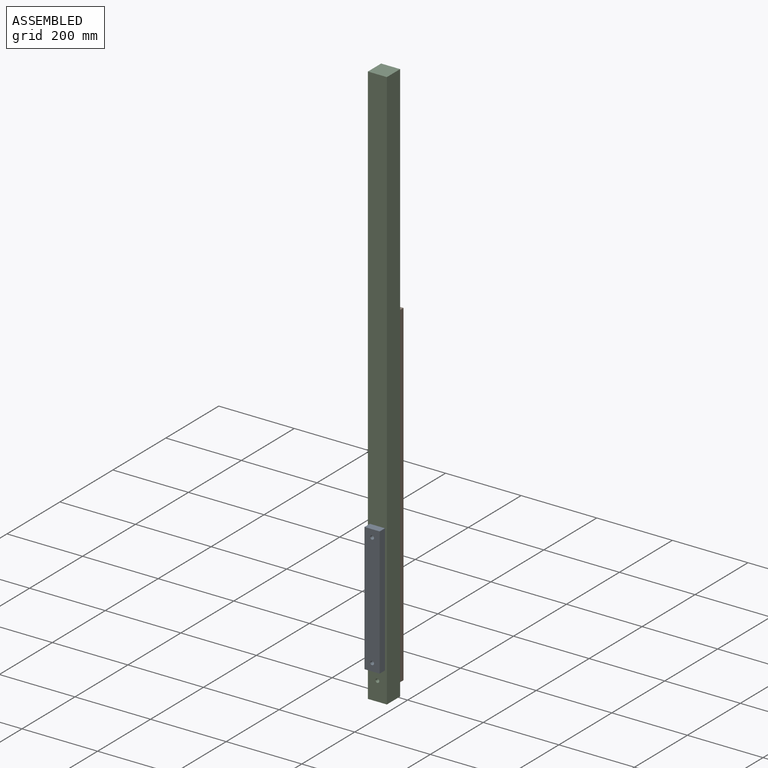
[diagram: assembled view]
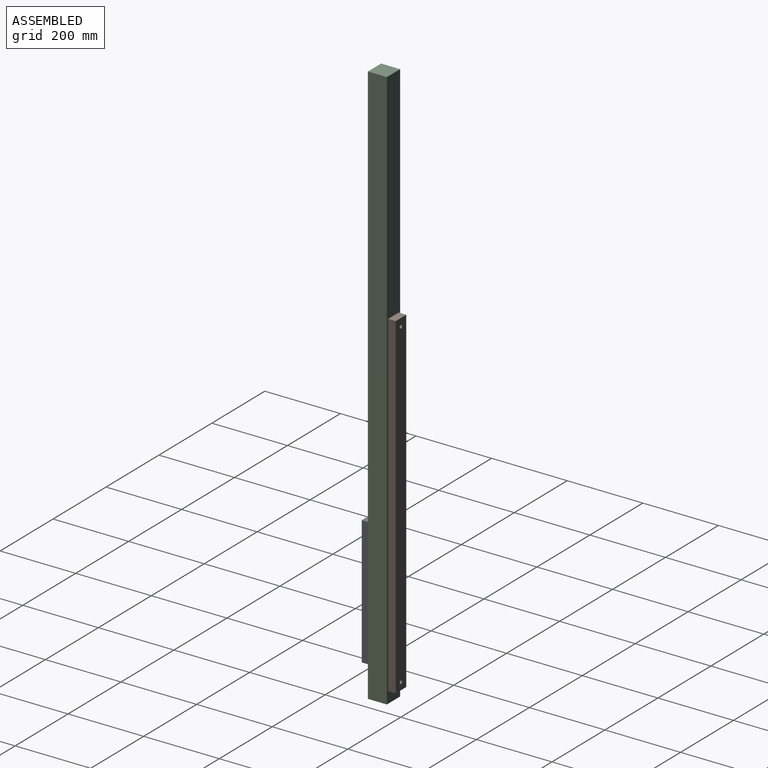
[diagram: assembled view, second angle]
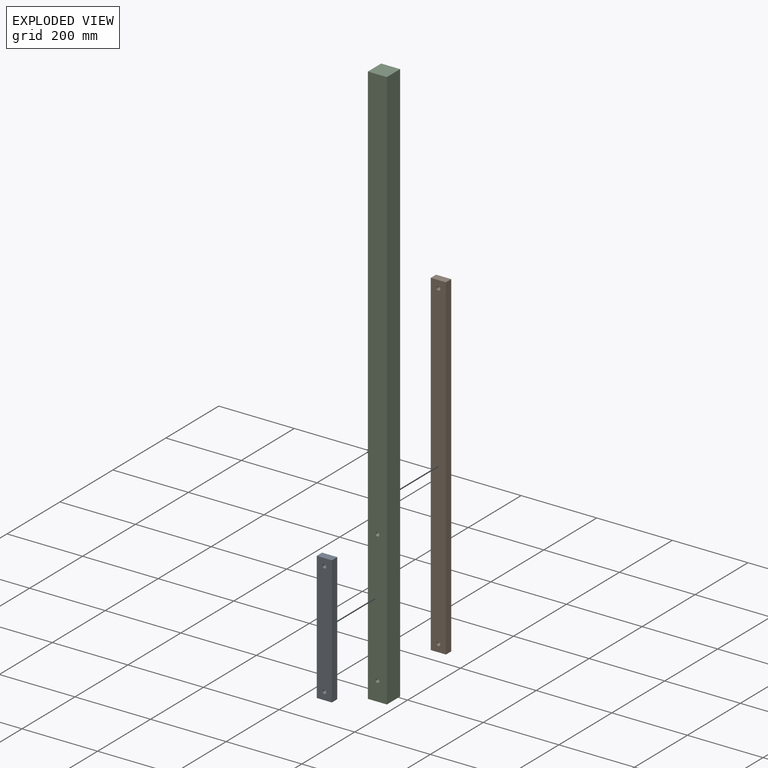
[diagram: exploded view]
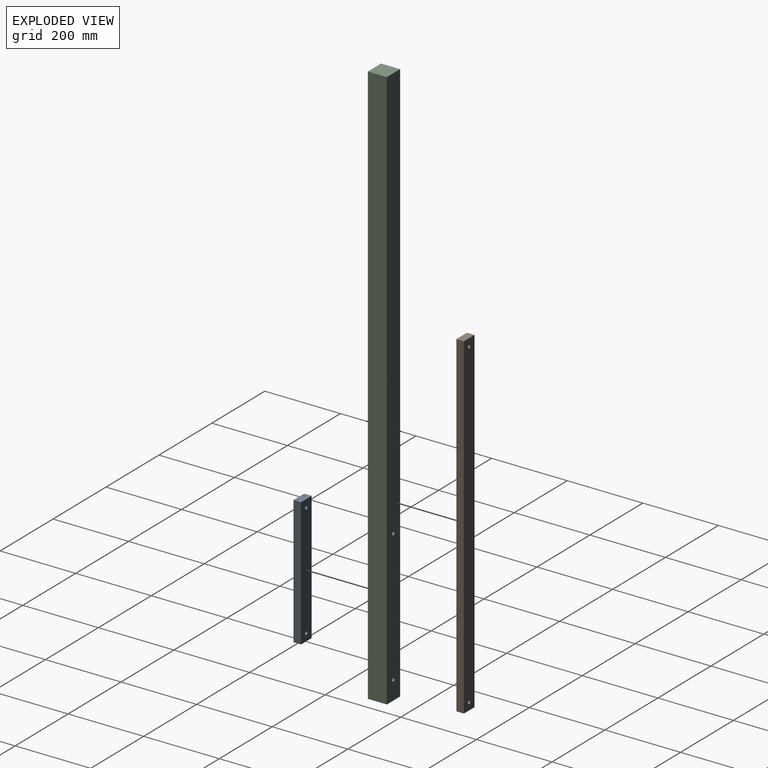
[diagram: exploded view, second angle]
ASSEMBLY  parts=3 mates=4
PART A: 8 faces, bbox 40x20x340 mm
  f0: plane 40x20mm, normal (0,0,-1), area 800mm2, adj f1,f5,f6,f7
  f1: plane 340x20mm, normal (1,0,0), area 6800mm2, adj f0,f2,f6,f7
  f2: plane 40x20mm, normal (0,0,1), area 800mm2, adj f1,f5,f6,f7
  f3: cylinder r=5mm len=20mm, axis (0,1,0), area 628.3mm2, adj f6,f7
  f4: cylinder r=5mm len=20mm, axis (0,1,0), area 628.3mm2, adj f6,f7
  f5: plane 340x20mm, normal (-1,0,0), area 6800mm2, adj f0,f2,f6,f7
  f6: plane 340x40mm, normal (0,-1,0), area 13442.9mm2, adj f0,f1,f2,f3,f4,f5
  f7: plane 340x40mm, normal (0,1,0), area 13442.9mm2, adj f0,f1,f2,f3,f4,f5
PART B: 8 faces, bbox 40x20x890 mm
  f0: plane 40x20mm, normal (0,0,-1), area 800mm2, adj f1,f5,f6,f7
  f1: plane 890x20mm, normal (1,0,0), area 17800mm2, adj f0,f2,f6,f7
  f2: plane 40x20mm, normal (0,0,1), area 800mm2, adj f1,f5,f6,f7
  f3: cylinder r=5mm len=20mm, axis (0,1,0), area 628.3mm2, adj f6,f7
  f4: cylinder r=5mm len=20mm, axis (0,1,0), area 628.3mm2, adj f6,f7
  f5: plane 890x20mm, normal (-1,0,0), area 17800mm2, adj f0,f2,f6,f7
  f6: plane 890x40mm, normal (0,-1,0), area 35442.9mm2, adj f0,f1,f2,f3,f4,f5
  f7: plane 890x40mm, normal (0,1,0), area 35442.9mm2, adj f0,f1,f2,f3,f4,f5
PART C: 8 faces, bbox 50x50x1500 mm
  f0: plane 50x50mm, normal (0,0,-1), area 2500mm2, adj f1,f5,f6,f7
  f1: plane 1500x50mm, normal (1,0,0), area 75000mm2, adj f0,f2,f6,f7
  f2: plane 50x50mm, normal (0,0,1), area 2500mm2, adj f1,f5,f6,f7
  f3: cylinder r=5mm len=50mm, axis (0,1,0), area 1570.8mm2, adj f6,f7
  f4: cylinder r=5mm len=50mm, axis (0,1,0), area 1570.8mm2, adj f6,f7
  f5: plane 1500x50mm, normal (-1,0,0), area 75000mm2, adj f0,f2,f6,f7
  f6: plane 1500x50mm, normal (0,-1,0), area 74842.9mm2, adj f0,f1,f2,f3,f4,f5
  f7: plane 1500x50mm, normal (0,1,0), area 74842.9mm2, adj f0,f1,f2,f3,f4,f5
PLACE A t=(178.87,-84.08,-692.13)mm
PLACE B t=(178.87,-14.08,-467.13)mm
PLACE C t=(178.87,-34.08,-192.13)mm
MATE cylindrical B.f4 <-> C.f3  axis (0,1,0) through (178.87,-14.08,-892.13)mm
MATE cylindrical A.f3 <-> C.f4  axis (0,-1,0) through (178.87,-104.08,-542.13)mm
MATE planar C.f7 <-> B.f6  axis (0,1,0) through (178.87,-34.08,-191.03)mm
MATE planar C.f6 <-> A.f7  axis (0,-1,0) through (178.87,-84.08,-191.03)mm
